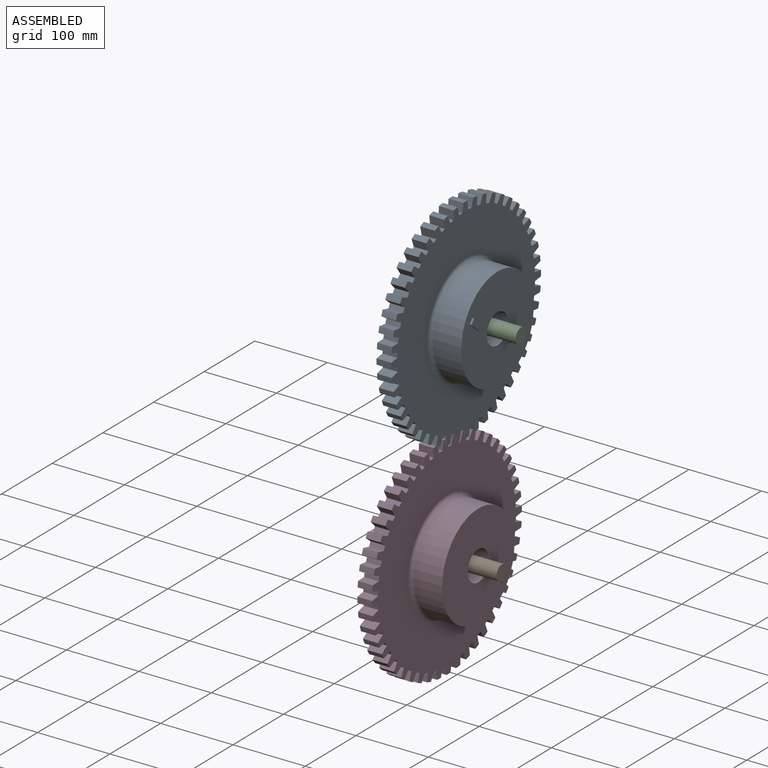
[diagram: assembled view]
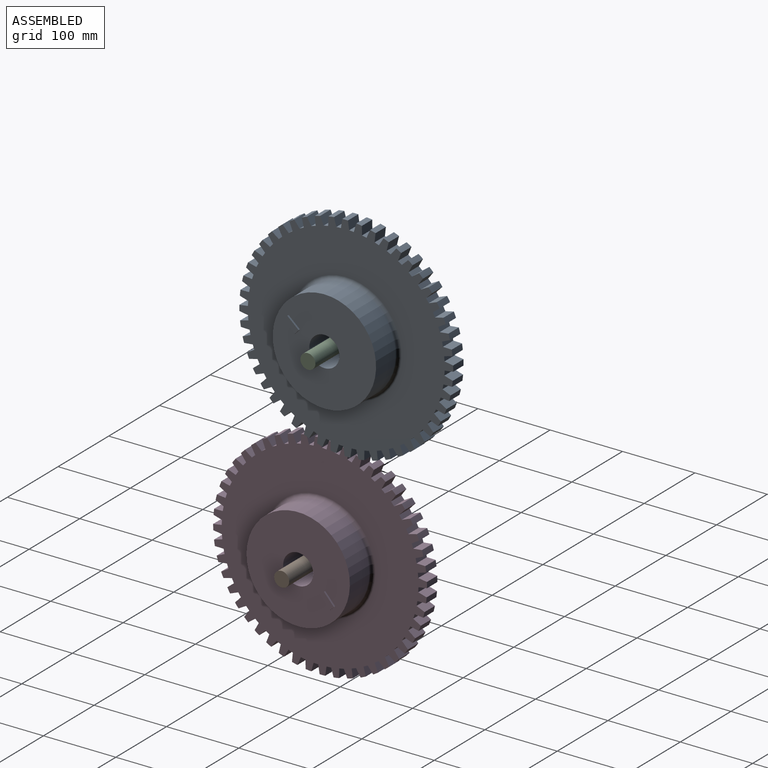
[diagram: assembled view, second angle]
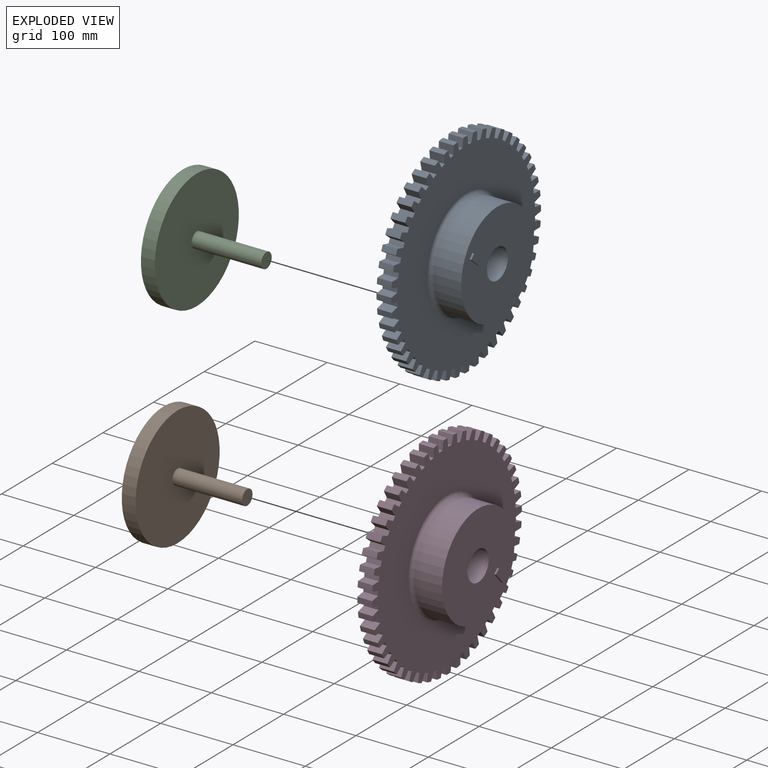
[diagram: exploded view]
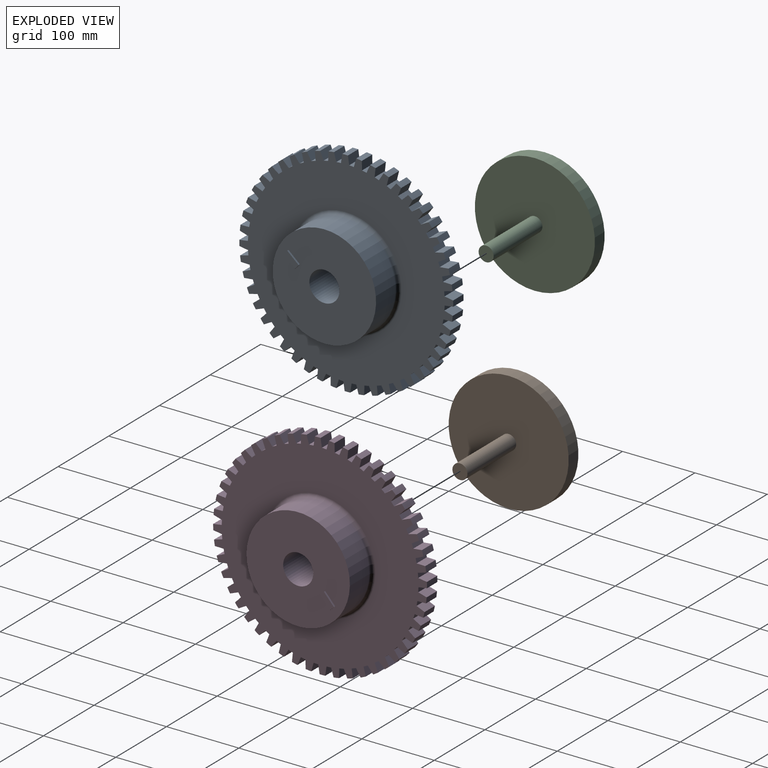
[diagram: exploded view, second angle]
ASSEMBLY  parts=4 mates=2
PART A: 203 faces, bbox 295.4x66.2x295.4 mm
  f0: plane 142.87x142.87mm, normal (0,1,0), area 14507.6mm2, adj f51,f52,f198,f199,f200,f201
  f1: plane 295.45x295.45mm, normal (0,-1,0), area 62149.3mm2, adj f3,f4,f5,f6,f7,f8,f9,f10
  f2: plane 295.45x295.45mm, normal (0,1,0), area 45111.1mm2, adj f3,f4,f5,f6,f7,f8,f9,f10
  f3: cylinder r=147.76mm len=20.41mm, axis (0,-1,0), area 159mm2, adj f1,f2,f61,f195
  f4: cylinder r=147.76mm len=20.41mm, axis (0,-1,0), area 159mm2, adj f1,f2,f55,f192
  f5: cylinder r=147.76mm len=20.41mm, axis (0,-1,0), area 159mm2, adj f1,f2,f187,f189
  f6: cylinder r=147.76mm len=20.41mm, axis (0,-1,0), area 159mm2, adj f1,f2,f186,f193
  f7: cylinder r=147.76mm len=20.41mm, axis (0,-1,0), area 159mm2, adj f1,f2,f183,f196
  f8: cylinder r=147.76mm len=20.41mm, axis (0,-1,0), area 159mm2, adj f1,f2,f180,f184
  f9: cylinder r=147.76mm len=20.41mm, axis (0,-1,0), area 159mm2, adj f1,f2,f177,f181
  f10: cylinder r=147.76mm len=20.41mm, axis (0,-1,0), area 159mm2, adj f1,f2,f174,f178
  f11: cylinder r=147.76mm len=20.41mm, axis (0,-1,0), area 159mm2, adj f1,f2,f171,f190
  f12: cylinder r=147.76mm len=20.41mm, axis (0,-1,0), area 159mm2, adj f1,f2,f168,f172
  f13: cylinder r=147.76mm len=20.41mm, axis (0,-1,0), area 159mm2, adj f1,f2,f165,f169
  f14: cylinder r=147.76mm len=20.41mm, axis (0,-1,0), area 159mm2, adj f1,f2,f162,f166
  f15: cylinder r=147.76mm len=20.41mm, axis (0,-1,0), area 159mm2, adj f1,f2,f159,f163
  f16: cylinder r=147.76mm len=20.41mm, axis (0,-1,0), area 159mm2, adj f1,f2,f156,f160
  f17: cylinder r=147.76mm len=20.41mm, axis (0,-1,0), area 159mm2, adj f1,f2,f153,f157
  f18: cylinder r=147.76mm len=20.41mm, axis (0,-1,0), area 159mm2, adj f1,f2,f150,f154
  f19: cylinder r=147.76mm len=20.41mm, axis (0,-1,0), area 159mm2, adj f1,f2,f145,f147
  f20: cylinder r=147.76mm len=20.41mm, axis (0,-1,0), area 159mm2, adj f1,f2,f142,f144
  f21: cylinder r=147.76mm len=20.41mm, axis (0,-1,0), area 159mm2, adj f1,f2,f139,f141
  f22: cylinder r=147.76mm len=20.41mm, axis (0,-1,0), area 159mm2, adj f1,f2,f136,f138
  f23: cylinder r=147.76mm len=20.41mm, axis (0,-1,0), area 159mm2, adj f1,f2,f133,f135
  f24: cylinder r=147.76mm len=20.41mm, axis (0,-1,0), area 159mm2, adj f1,f2,f130,f132
  f25: cylinder r=147.76mm len=20.41mm, axis (0,-1,0), area 159mm2, adj f1,f2,f127,f129
  f26: cylinder r=147.76mm len=20.41mm, axis (0,-1,0), area 159mm2, adj f1,f2,f121,f126
  f27: cylinder r=147.76mm len=20.41mm, axis (0,-1,0), area 159mm2, adj f1,f2,f118,f123
  f28: cylinder r=147.76mm len=20.41mm, axis (0,-1,0), area 159mm2, adj f1,f2,f120,f124
  f29: cylinder r=147.76mm len=20.41mm, axis (0,-1,0), area 159mm2, adj f1,f2,f115,f117
  f30: cylinder r=147.76mm len=20.41mm, axis (0,-1,0), area 159mm2, adj f1,f2,f112,f114
  f31: cylinder r=147.76mm len=20.41mm, axis (0,-1,0), area 159mm2, adj f1,f2,f109,f111
  f32: cylinder r=147.76mm len=20.41mm, axis (0,-1,0), area 159mm2, adj f1,f2,f106,f108
  f33: cylinder r=147.76mm len=20.41mm, axis (0,-1,0), area 159mm2, adj f1,f2,f103,f105
  f34: cylinder r=147.76mm len=20.41mm, axis (0,-1,0), area 159mm2, adj f1,f2,f102,f175
  f35: cylinder r=147.76mm len=20.41mm, axis (0,-1,0), area 159mm2, adj f1,f2,f94,f99
  f36: cylinder r=147.76mm len=20.41mm, axis (0,-1,0), area 159mm2, adj f1,f2,f96,f100
  f37: cylinder r=147.76mm len=20.41mm, axis (0,-1,0), area 159mm2, adj f1,f2,f91,f93
  f38: cylinder r=147.76mm len=20.41mm, axis (0,-1,0), area 159mm2, adj f1,f2,f90,f151
  f39: cylinder r=147.76mm len=20.41mm, axis (0,-1,0), area 159mm2, adj f1,f2,f87,f97
  f40: cylinder r=147.76mm len=20.41mm, axis (0,-1,0), area 159mm2, adj f1,f2,f84,f88
  f41: cylinder r=147.76mm len=20.41mm, axis (0,-1,0), area 159mm2, adj f1,f2,f81,f85
  f42: cylinder r=147.76mm len=20.41mm, axis (0,-1,0), area 159mm2, adj f1,f2,f78,f82
  f43: cylinder r=147.76mm len=20.41mm, axis (0,-1,0), area 159mm2, adj f1,f2,f75,f79
  f44: cylinder r=147.76mm len=20.41mm, axis (0,-1,0), area 159mm2, adj f1,f2,f72,f76
  f45: cylinder r=147.76mm len=20.41mm, axis (0,-1,0), area 159mm2, adj f1,f2,f69,f73
  f46: cylinder r=147.76mm len=20.41mm, axis (0,-1,0), area 159mm2, adj f1,f2,f66,f70
  f47: cylinder r=147.76mm len=20.41mm, axis (0,-1,0), area 159mm2, adj f1,f2,f63,f67
  f48: cylinder r=147.76mm len=20.41mm, axis (0,-1,0), area 159mm2, adj f1,f2,f60,f64
  f49: cylinder r=147.76mm len=20.41mm, axis (0,-1,0), area 159mm2, adj f1,f2,f57,f148
  f50: cylinder r=147.76mm len=20.41mm, axis (0,-1,0), area 159mm2, adj f1,f2,f54,f58
  f51: cylinder r=20.76mm len=63.64mm, axis (0,-1,0), area 8302mm2, adj f0,f1
  f52: cylinder r=71.43mm len=142.87mm, axis (0,-1,0), area 17122.9mm2, adj f0,f53
  f53: torus R=76.51mm, axis (0,1,0), area 3674.1mm2, adj f2,f52
  f54: plane 20.41x11.35mm, normal (0.95,0,0.3), area 243mm2, adj f1,f2,f50,f56
  f55: plane 20.41x8.93mm, normal (-0.74,0,-0.67), area 247mm2, adj f1,f2,f4,f56
  f56: plane 20.41x5.53mm, normal (0.5,0,-0.87), area 130.5mm2, adj f1,f2,f54,f55
  f57: plane 20.41x11.72mm, normal (0.98,0,0.18), area 243mm2, adj f1,f2,f49,f59
  f58: plane 20.41x9.92mm, normal (-0.82,0,-0.57), area 247mm2, adj f1,f2,f50,f59
  f59: plane 20.41x5.9mm, normal (0.38,0,-0.92), area 130.5mm2, adj f1,f2,f57,f58
  f60: plane 20.41x10.78mm, normal (-0.91,0,-0.42), area 243mm2, adj f1,f2,f48,f62
  f61: plane 20.41x9.26mm, normal (0.64,0,0.77), area 247mm2, adj f1,f2,f3,f62
  f62: plane 20.41x5.07mm, normal (-0.61,0,0.79), area 130.5mm2, adj f1,f2,f60,f61
  f63: plane 20.41x11.35mm, normal (-0.95,0,-0.3), area 243mm2, adj f1,f2,f47,f65
  f64: plane 20.41x8.93mm, normal (0.74,0,0.67), area 247mm2, adj f1,f2,f48,f65
  f65: plane 20.41x5.53mm, normal (-0.5,0,0.87), area 130.5mm2, adj f1,f2,f63,f64
  f66: plane 20.41x11.72mm, normal (-0.98,0,-0.18), area 243mm2, adj f1,f2,f46,f68
  f67: plane 20.41x9.92mm, normal (0.82,0,0.57), area 247mm2, adj f1,f2,f47,f68
  f68: plane 20.41x5.9mm, normal (-0.38,0,0.92), area 130.5mm2, adj f1,f2,f66,f67
  f69: plane 20.41x11.89mm, normal (-1,0,-0.05), area 243mm2, adj f1,f2,f45,f71
  f70: plane 20.41x10.74mm, normal (0.89,0,0.46), area 247mm2, adj f1,f2,f46,f71
  f71: plane 20.41x6.17mm, normal (-0.26,0,0.97), area 130.5mm2, adj f1,f2,f69,f70
  f72: plane 20.41x11.86mm, normal (-1,0,0.09), area 243mm2, adj f1,f2,f44,f74
  f73: plane 20.41x11.38mm, normal (0.94,0,0.34), area 247mm2, adj f1,f2,f45,f74
  f74: plane 20.41x6.34mm, normal (-0.13,0,0.99), area 130.5mm2, adj f1,f2,f72,f73
  f75: plane 20.41x11.63mm, normal (-0.98,0,0.21), area 243mm2, adj f1,f2,f43,f77
  f76: plane 20.41x11.82mm, normal (0.98,0,0.21), area 247mm2, adj f1,f2,f44,f77
  f77: plane 20.41x6.39mm, normal (0,0,1), area 130.5mm2, adj f1,f2,f75,f76
  f78: plane 20.41x11.19mm, normal (-0.94,0,0.34), area 243mm2, adj f1,f2,f42,f80
  f79: plane 20.41x12.05mm, normal (1,0,0.09), area 247mm2, adj f1,f2,f43,f80
  f80: plane 20.41x6.34mm, normal (0.13,0,0.99), area 130.5mm2, adj f1,f2,f78,f79
  f81: plane 20.41x10.57mm, normal (-0.89,0,0.46), area 243mm2, adj f1,f2,f41,f83
  f82: plane 20.41x12.09mm, normal (1,0,-0.05), area 247mm2, adj f1,f2,f42,f83
  f83: plane 20.41x6.17mm, normal (0.26,0,0.97), area 130.5mm2, adj f1,f2,f81,f82
  f84: plane 20.41x9.76mm, normal (-0.82,0,0.57), area 243mm2, adj f1,f2,f40,f86
  f85: plane 20.41x11.91mm, normal (0.98,0,-0.18), area 247mm2, adj f1,f2,f41,f86
  f86: plane 20.41x5.9mm, normal (0.38,0,0.92), area 130.5mm2, adj f1,f2,f84,f85
  f87: plane 20.41x8.79mm, normal (-0.74,0,0.67), area 243mm2, adj f1,f2,f39,f89
  f88: plane 20.41x11.53mm, normal (0.95,0,-0.3), area 247mm2, adj f1,f2,f40,f89
  f89: plane 20.41x5.53mm, normal (0.5,0,0.87), area 130.5mm2, adj f1,f2,f87,f88
  f90: plane 20.41x11.35mm, normal (-0.3,0,0.95), area 243mm2, adj f1,f2,f38,f92
  f91: plane 20.41x8.93mm, normal (0.67,0,-0.74), area 247mm2, adj f1,f2,f37,f92
  f92: plane 20.41x5.53mm, normal (0.87,0,0.5), area 130.5mm2, adj f1,f2,f90,f91
  f93: plane 20.41x10.78mm, normal (-0.42,0,0.91), area 243mm2, adj f1,f2,f37,f95
  f94: plane 20.41x9.26mm, normal (0.77,0,-0.64), area 247mm2, adj f1,f2,f35,f95
  f95: plane 20.41x5.07mm, normal (0.79,0,0.61), area 130.5mm2, adj f1,f2,f93,f94
  f96: plane 20.41x9.11mm, normal (-0.64,0,0.77), area 243mm2, adj f1,f2,f36,f98
  f97: plane 20.41x10.96mm, normal (0.91,0,-0.42), area 247mm2, adj f1,f2,f39,f98
  f98: plane 20.41x5.07mm, normal (0.61,0,0.79), area 130.5mm2, adj f1,f2,f96,f97
  f99: plane 20.41x10.03mm, normal (-0.54,0,0.84), area 243mm2, adj f1,f2,f35,f101
  f100: plane 20.41x10.19mm, normal (0.84,0,-0.54), area 247mm2, adj f1,f2,f36,f101
  f101: plane 20.41x4.52mm, normal (0.71,0,0.71), area 130.5mm2, adj f1,f2,f99,f100
  f102: plane 20.41x11.19mm, normal (-0.34,0,-0.94), area 243mm2, adj f1,f2,f34,f104
  f103: plane 20.41x12.05mm, normal (-0.09,0,1), area 247mm2, adj f1,f2,f33,f104
  f104: plane 20.41x6.34mm, normal (-0.99,0,0.13), area 130.5mm2, adj f1,f2,f102,f103
  f105: plane 20.41x11.63mm, normal (-0.21,0,-0.98), area 243mm2, adj f1,f2,f33,f107
  f106: plane 20.41x11.82mm, normal (-0.21,0,0.98), area 247mm2, adj f1,f2,f32,f107
  f107: plane 20.41x6.39mm, normal (-1,0,0), area 130.5mm2, adj f1,f2,f105,f106
  f108: plane 20.41x11.86mm, normal (-0.09,0,-1), area 243mm2, adj f1,f2,f32,f110
  f109: plane 20.41x11.38mm, normal (-0.34,0,0.94), area 247mm2, adj f1,f2,f31,f110
  f110: plane 20.41x6.34mm, normal (-0.99,0,-0.13), area 130.5mm2, adj f1,f2,f108,f109
  f111: plane 20.41x11.89mm, normal (0.05,0,-1), area 243mm2, adj f1,f2,f31,f113
  f112: plane 20.41x10.74mm, normal (-0.46,0,0.89), area 247mm2, adj f1,f2,f30,f113
  f113: plane 20.41x6.17mm, normal (-0.97,0,-0.26), area 130.5mm2, adj f1,f2,f111,f112
  f114: plane 20.41x11.72mm, normal (0.18,0,-0.98), area 243mm2, adj f1,f2,f30,f116
  f115: plane 20.41x9.92mm, normal (-0.57,0,0.82), area 247mm2, adj f1,f2,f29,f116
  f116: plane 20.41x5.9mm, normal (-0.92,0,-0.38), area 130.5mm2, adj f1,f2,f114,f115
  f117: plane 20.41x11.35mm, normal (0.3,0,-0.95), area 243mm2, adj f1,f2,f29,f119
  f118: plane 20.41x8.93mm, normal (-0.67,0,0.74), area 247mm2, adj f1,f2,f27,f119
  f119: plane 20.41x5.53mm, normal (-0.87,0,-0.5), area 130.5mm2, adj f1,f2,f117,f118
  f120: plane 20.41x10.03mm, normal (0.54,0,-0.84), area 243mm2, adj f1,f2,f28,f122
  f121: plane 20.41x10.19mm, normal (-0.84,0,0.54), area 247mm2, adj f1,f2,f26,f122
  f122: plane 20.41x4.52mm, normal (-0.71,0,-0.71), area 130.5mm2, adj f1,f2,f120,f121
  f123: plane 20.41x10.78mm, normal (0.42,0,-0.91), area 243mm2, adj f1,f2,f27,f125
  f124: plane 20.41x9.26mm, normal (-0.77,0,0.64), area 247mm2, adj f1,f2,f28,f125
  f125: plane 20.41x5.07mm, normal (-0.79,0,-0.61), area 130.5mm2, adj f1,f2,f123,f124
  f126: plane 20.41x9.11mm, normal (0.64,0,-0.77), area 243mm2, adj f1,f2,f26,f128
  f127: plane 20.41x10.96mm, normal (-0.91,0,0.42), area 247mm2, adj f1,f2,f25,f128
  f128: plane 20.41x5.07mm, normal (-0.61,0,-0.79), area 130.5mm2, adj f1,f2,f126,f127
  f129: plane 20.41x8.79mm, normal (0.74,0,-0.67), area 243mm2, adj f1,f2,f25,f131
  f130: plane 20.41x11.53mm, normal (-0.95,0,0.3), area 247mm2, adj f1,f2,f24,f131
  f131: plane 20.41x5.53mm, normal (-0.5,0,-0.87), area 130.5mm2, adj f1,f2,f129,f130
  f132: plane 20.41x9.76mm, normal (0.82,0,-0.57), area 243mm2, adj f1,f2,f24,f134
  f133: plane 20.41x11.91mm, normal (-0.98,0,0.18), area 247mm2, adj f1,f2,f23,f134
  f134: plane 20.41x5.9mm, normal (-0.38,0,-0.92), area 130.5mm2, adj f1,f2,f132,f133
  f135: plane 20.41x10.57mm, normal (0.89,0,-0.46), area 243mm2, adj f1,f2,f23,f137
  f136: plane 20.41x12.09mm, normal (-1,0,0.05), area 247mm2, adj f1,f2,f22,f137
  f137: plane 20.41x6.17mm, normal (-0.26,0,-0.97), area 130.5mm2, adj f1,f2,f135,f136
  f138: plane 20.41x11.19mm, normal (0.94,0,-0.34), area 243mm2, adj f1,f2,f22,f140
  f139: plane 20.41x12.05mm, normal (-1,0,-0.09), area 247mm2, adj f1,f2,f21,f140
  f140: plane 20.41x6.34mm, normal (-0.13,0,-0.99), area 130.5mm2, adj f1,f2,f138,f139
  f141: plane 20.41x11.63mm, normal (0.98,0,-0.21), area 243mm2, adj f1,f2,f21,f143
  f142: plane 20.41x11.82mm, normal (-0.98,0,-0.21), area 247mm2, adj f1,f2,f20,f143
  f143: plane 20.41x6.39mm, normal (0,0,-1), area 130.5mm2, adj f1,f2,f141,f142
  f144: plane 20.41x11.86mm, normal (1,0,-0.09), area 243mm2, adj f1,f2,f20,f146
  f145: plane 20.41x11.38mm, normal (-0.94,0,-0.34), area 247mm2, adj f1,f2,f19,f146
  f146: plane 20.41x6.34mm, normal (0.13,0,-0.99), area 130.5mm2, adj f1,f2,f144,f145
  f147: plane 20.41x11.89mm, normal (1,0,0.05), area 243mm2, adj f1,f2,f19,f149
  f148: plane 20.41x10.74mm, normal (-0.89,0,-0.46), area 247mm2, adj f1,f2,f49,f149
  f149: plane 20.41x6.17mm, normal (0.26,0,-0.97), area 130.5mm2, adj f1,f2,f147,f148
  f150: plane 20.41x11.72mm, normal (-0.18,0,0.98), area 243mm2, adj f1,f2,f18,f152
  f151: plane 20.41x9.92mm, normal (0.57,0,-0.82), area 247mm2, adj f1,f2,f38,f152
  f152: plane 20.41x5.9mm, normal (0.92,0,0.38), area 130.5mm2, adj f1,f2,f150,f151
  f153: plane 20.41x11.89mm, normal (-0.05,0,1), area 243mm2, adj f1,f2,f17,f155
  f154: plane 20.41x10.74mm, normal (0.46,0,-0.89), area 247mm2, adj f1,f2,f18,f155
  f155: plane 20.41x6.17mm, normal (0.97,0,0.26), area 130.5mm2, adj f1,f2,f153,f154
  f156: plane 20.41x11.86mm, normal (0.09,0,1), area 243mm2, adj f1,f2,f16,f158
  f157: plane 20.41x11.38mm, normal (0.34,0,-0.94), area 247mm2, adj f1,f2,f17,f158
  f158: plane 20.41x6.34mm, normal (0.99,0,0.13), area 130.5mm2, adj f1,f2,f156,f157
  f159: plane 20.41x11.63mm, normal (0.21,0,0.98), area 243mm2, adj f1,f2,f15,f161
  f160: plane 20.41x11.82mm, normal (0.21,0,-0.98), area 247mm2, adj f1,f2,f16,f161
  f161: plane 20.41x6.39mm, normal (1,0,0), area 130.5mm2, adj f1,f2,f159,f160
  f162: plane 20.41x11.19mm, normal (0.34,0,0.94), area 243mm2, adj f1,f2,f14,f164
  f163: plane 20.41x12.05mm, normal (0.09,0,-1), area 247mm2, adj f1,f2,f15,f164
  f164: plane 20.41x6.34mm, normal (0.99,0,-0.13), area 130.5mm2, adj f1,f2,f162,f163
  f165: plane 20.41x10.57mm, normal (0.46,0,0.89), area 243mm2, adj f1,f2,f13,f167
  f166: plane 20.41x12.09mm, normal (-0.05,0,-1), area 247mm2, adj f1,f2,f14,f167
  f167: plane 20.41x6.17mm, normal (0.97,0,-0.26), area 130.5mm2, adj f1,f2,f165,f166
  f168: plane 20.41x9.76mm, normal (0.57,0,0.82), area 243mm2, adj f1,f2,f12,f170
  f169: plane 20.41x11.91mm, normal (-0.18,0,-0.98), area 247mm2, adj f1,f2,f13,f170
  f170: plane 20.41x5.9mm, normal (0.92,0,-0.38), area 130.5mm2, adj f1,f2,f168,f169
  f171: plane 20.41x8.79mm, normal (0.67,0,0.74), area 243mm2, adj f1,f2,f11,f173
  f172: plane 20.41x11.53mm, normal (-0.3,0,-0.95), area 247mm2, adj f1,f2,f12,f173
  f173: plane 20.41x5.53mm, normal (0.87,0,-0.5), area 130.5mm2, adj f1,f2,f171,f172
  f174: plane 20.41x10.57mm, normal (-0.46,0,-0.89), area 243mm2, adj f1,f2,f10,f176
  f175: plane 20.41x12.09mm, normal (0.05,0,1), area 247mm2, adj f1,f2,f34,f176
  f176: plane 20.41x6.17mm, normal (-0.97,0,0.26), area 130.5mm2, adj f1,f2,f174,f175
  f177: plane 20.41x9.76mm, normal (-0.57,0,-0.82), area 243mm2, adj f1,f2,f9,f179
  f178: plane 20.41x11.91mm, normal (0.18,0,0.98), area 247mm2, adj f1,f2,f10,f179
  f179: plane 20.41x5.9mm, normal (-0.92,0,0.38), area 130.5mm2, adj f1,f2,f177,f178
  f180: plane 20.41x8.79mm, normal (-0.67,0,-0.74), area 243mm2, adj f1,f2,f8,f182
  f181: plane 20.41x11.53mm, normal (0.3,0,0.95), area 247mm2, adj f1,f2,f9,f182
  f182: plane 20.41x5.53mm, normal (-0.87,0,0.5), area 130.5mm2, adj f1,f2,f180,f181
  f183: plane 20.41x9.11mm, normal (-0.77,0,-0.64), area 243mm2, adj f1,f2,f7,f185
  f184: plane 20.41x10.96mm, normal (0.42,0,0.91), area 247mm2, adj f1,f2,f8,f185
  f185: plane 20.41x5.07mm, normal (-0.79,0,0.61), area 130.5mm2, adj f1,f2,f183,f184
  f186: plane 20.41x10.03mm, normal (0.84,0,0.54), area 243mm2, adj f1,f2,f6,f188
  f187: plane 20.41x10.19mm, normal (-0.54,0,-0.84), area 247mm2, adj f1,f2,f5,f188
  f188: plane 20.41x4.52mm, normal (0.71,0,-0.71), area 130.5mm2, adj f1,f2,f186,f187
  f189: plane 20.41x9.11mm, normal (0.77,0,0.64), area 243mm2, adj f1,f2,f5,f191
  f190: plane 20.41x10.96mm, normal (-0.42,0,-0.91), area 247mm2, adj f1,f2,f11,f191
  f191: plane 20.41x5.07mm, normal (0.79,0,-0.61), area 130.5mm2, adj f1,f2,f189,f190
  f192: plane 20.41x10.78mm, normal (0.91,0,0.42), area 243mm2, adj f1,f2,f4,f194
  f193: plane 20.41x9.26mm, normal (-0.64,0,-0.77), area 247mm2, adj f1,f2,f6,f194
  f194: plane 20.41x5.07mm, normal (0.61,0,-0.79), area 130.5mm2, adj f1,f2,f192,f193
  f195: plane 20.41x10.03mm, normal (-0.84,0,-0.54), area 243mm2, adj f1,f2,f3,f197
  f196: plane 20.41x10.19mm, normal (0.54,0,0.84), area 247mm2, adj f1,f2,f7,f197
  f197: plane 20.41x4.52mm, normal (-0.71,0,0.71), area 130.5mm2, adj f1,f2,f195,f196
  f198: plane 8.05x2.54mm, normal (1,0,0), area 20.5mm2, adj f0,f199,f201,f202
  f199: plane 21.03x2.54mm, normal (0,0,-1), area 53.4mm2, adj f0,f198,f200,f202
  f200: plane 8.05x2.54mm, normal (-1,0,0), area 20.5mm2, adj f0,f199,f201,f202
  f201: plane 21.03x2.54mm, normal (0,0,1), area 53.4mm2, adj f0,f198,f200,f202
  f202: plane 21.03x8.05mm, normal (0,1,0), area 169.4mm2, adj f198,f199,f200,f201
PART B: 5 faces, bbox 115.4x165.9x165.9 mm
  f0: plane 165.88x165.88mm, normal (-1,0,0), area 21612.2mm2, adj f4
  f1: plane 20.75x20.75mm, normal (1,0,0), area 338.2mm2, adj f2
  f2: cylinder r=10.38mm len=96.22mm, axis (-1,0,0), area 6273mm2, adj f1,f3
  f3: plane 165.88x165.88mm, normal (1,0,0), area 21274mm2, adj f2,f4
  f4: cylinder r=82.94mm len=165.88mm, axis (-1,0,0), area 9993.8mm2, adj f0,f3
PART C: same geometry as B
PART D: same geometry as A
PLACE A rot(axis=(-0.33,-0.33,-0.88),97.2deg) t=(183.82,-188.55,246.95)mm
PLACE B t=(214.74,-225.3,-35.22)mm fixed
PLACE C t=(215.51,-188.55,246.95)mm fixed
PLACE D rot(axis=(0.67,0.67,-0.3),146.3deg) t=(183.05,-225.3,-35.22)mm
MATE revolute D.f3 <-> B.f2  axis (-1,0,0) through (183.05,-225.3,-35.22)mm
MATE revolute A.f3 <-> C.f2  axis (-1,0,0) through (183.82,-188.55,246.95)mm
